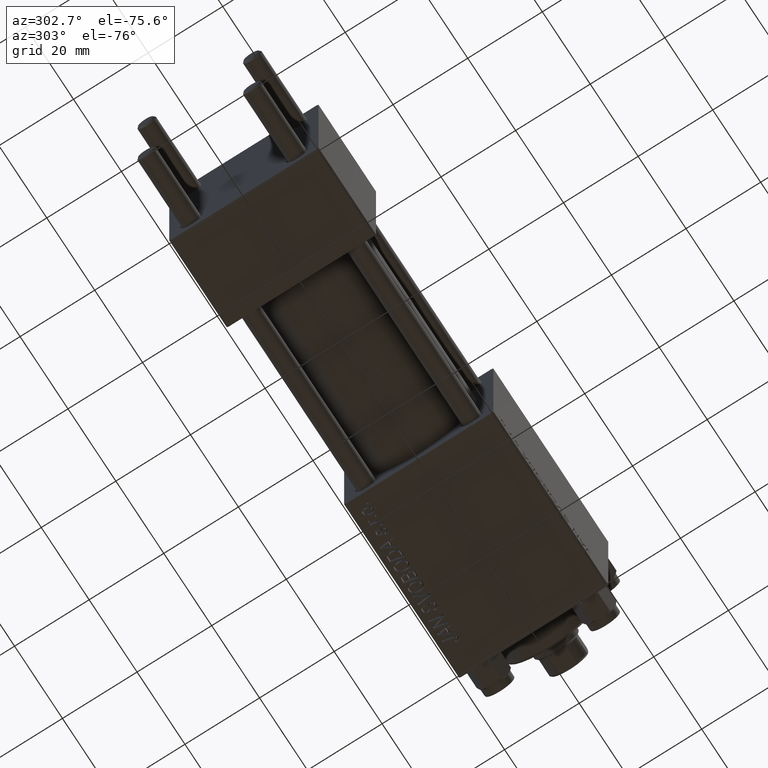
[diagram: clean part render]
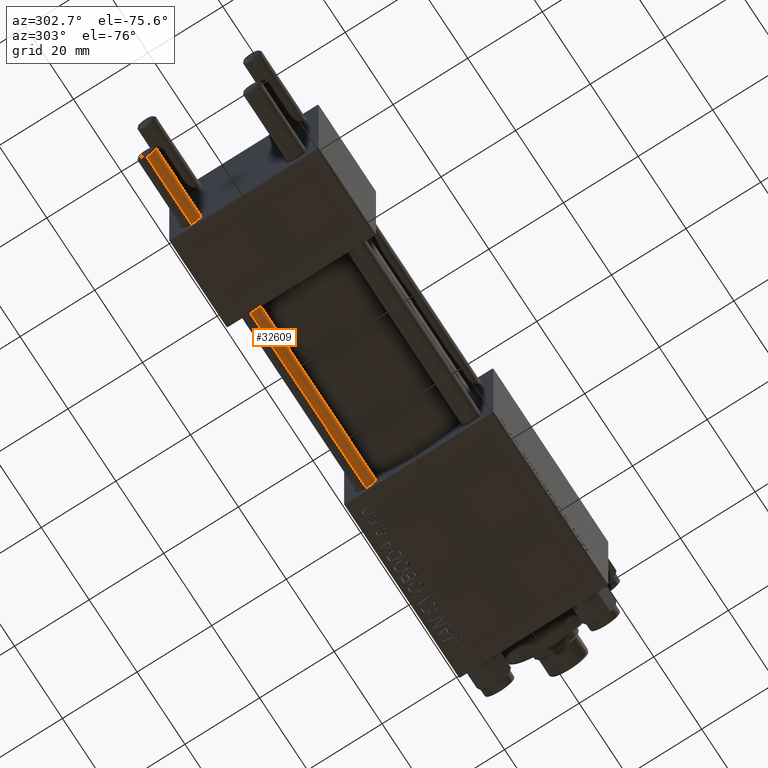
[diagram: same view with one face highlighted and labeled with its STEP entity id]
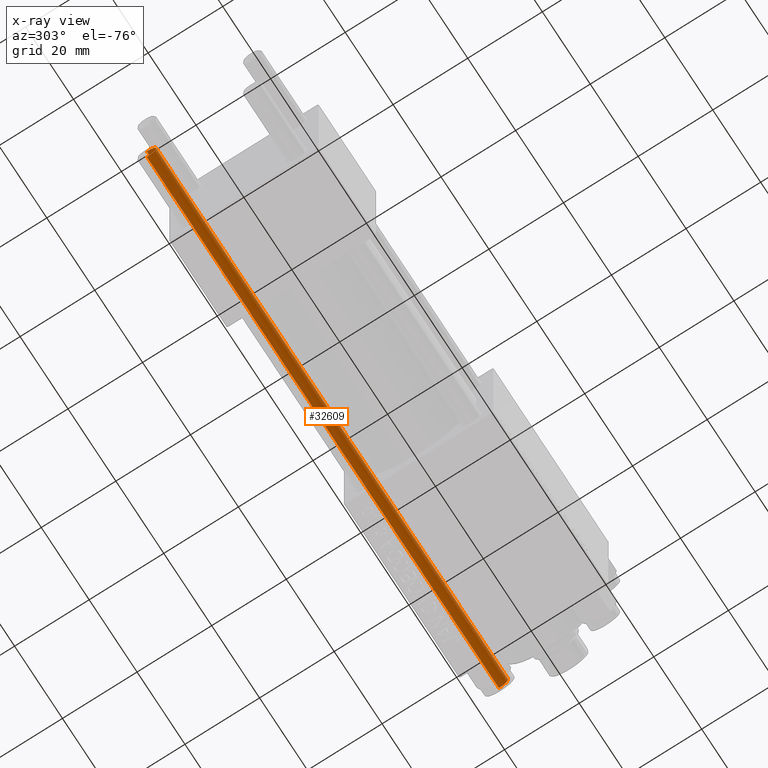
[diagram: x-ray of the same camera — body ghosted, the highlighted face saturated]
A machine part, auxiliary view. The second image highlights one B-rep face of the part: STEP entity #32609.
The next image is the same camera in x-ray: the body ghosted, the highlighted face saturated — about 0% of this face is hidden behind the body in this view.
In plain terms, the highlighted cylindrical surface (edge-blend (fillet) strip) has radius 2.5 mm, axis along (1, 0, -0).
Its self-contained STEP definition (entity closure, byte-faithful):
#1122 = ORIENTED_EDGE ( 'NONE', *, *, #37021, .F. ) ;
#1168 = ORIENTED_EDGE ( 'NONE', *, *, #42324, .T. ) ;
#1254 = EDGE_LOOP ( 'NONE', ( #1122, #13722, #7579, #1168 ) ) ;
#2597 = EDGE_CURVE ( 'NONE', #25005, #3240, #27219, .T. ) ;
#3240 = VERTEX_POINT ( 'NONE', #24052 ) ;
#3876 = CARTESIAN_POINT ( 'NONE',  ( -2.500000000000000000, 0.000000000000000000, 147.5000000000000284 ) ) ;
#4261 = CARTESIAN_POINT ( 'NONE',  ( 2.500000000000000000, 3.061616997868383141E-16, 0.5000000000000004441 ) ) ;
#4546 = CARTESIAN_POINT ( 'NONE',  ( 0.000000000000000000, 0.000000000000000000, 148.0000000000000000 ) ) ;
#5290 = DIRECTION ( 'NONE',  ( -1.000000000000000000, 0.000000000000000000, 0.000000000000000000 ) ) ;
#6192 = VECTOR ( 'NONE', #39978, 1000.000000000000000 ) ;
#6374 = CIRCLE ( 'NONE', #41845, 2.500000000000000000 ) ;
#7579 = ORIENTED_EDGE ( 'NONE', *, *, #2597, .T. ) ;
#7987 = DIRECTION ( 'NONE',  ( 0.000000000000000000, 0.000000000000000000, -1.000000000000000000 ) ) ;
#10083 = VERTEX_POINT ( 'NONE', #46061 ) ;
#10491 = CARTESIAN_POINT ( 'NONE',  ( 0.000000000000000000, 0.000000000000000000, 0.5000000000000004441 ) ) ;
#13722 = ORIENTED_EDGE ( 'NONE', *, *, #20855, .T. ) ;
#14238 = AXIS2_PLACEMENT_3D ( 'NONE', #4546, #31309, #5290 ) ;
#16798 = CARTESIAN_POINT ( 'NONE',  ( 2.500000000000000000, 3.061616997868383141E-16, 148.0000000000000000 ) ) ;
#19076 = VERTEX_POINT ( 'NONE', #4261 ) ;
#20855 = EDGE_CURVE ( 'NONE', #10083, #25005, #23237, .T. ) ;
#23237 = CIRCLE ( 'NONE', #24854, 2.500000000000000000 ) ;
#24052 = CARTESIAN_POINT ( 'NONE',  ( -2.500000000000000000, 0.000000000000000000, 0.5000000000000004441 ) ) ;
#24474 = CYLINDRICAL_SURFACE ( 'NONE', #14238, 2.500000000000000000 ) ;
#24854 = AXIS2_PLACEMENT_3D ( 'NONE', #27425, #7987, #30975 ) ;
#25005 = VERTEX_POINT ( 'NONE', #3876 ) ;
#27219 = LINE ( 'NONE', #31263, #32445 ) ;
#27425 = CARTESIAN_POINT ( 'NONE',  ( 0.000000000000000000, 0.000000000000000000, 147.5000000000000284 ) ) ;
#28132 = LINE ( 'NONE', #16798, #6192 ) ;
#30975 = DIRECTION ( 'NONE',  ( 1.000000000000000000, 0.000000000000000000, 0.000000000000000000 ) ) ;
#31263 = CARTESIAN_POINT ( 'NONE',  ( -2.500000000000000000, 0.000000000000000000, 148.0000000000000000 ) ) ;
#31309 = DIRECTION ( 'NONE',  ( -0.000000000000000000, -0.000000000000000000, -1.000000000000000000 ) ) ;
#32445 = VECTOR ( 'NONE', #39571, 1000.000000000000000 ) ;
#32609 = ADVANCED_FACE ( 'NONE', ( #39860 ), #24474, .T. ) ;
#37007 = DIRECTION ( 'NONE',  ( -0.000000000000000000, -0.000000000000000000, 1.000000000000000000 ) ) ;
#37021 = EDGE_CURVE ( 'NONE', #10083, #19076, #28132, .T. ) ;
#39571 = DIRECTION ( 'NONE',  ( -0.000000000000000000, -0.000000000000000000, -1.000000000000000000 ) ) ;
#39860 = FACE_OUTER_BOUND ( 'NONE', #1254, .T. ) ;
#39978 = DIRECTION ( 'NONE',  ( -0.000000000000000000, -0.000000000000000000, -1.000000000000000000 ) ) ;
#41845 = AXIS2_PLACEMENT_3D ( 'NONE', #10491, #37007, #45080 ) ;
#42324 = EDGE_CURVE ( 'NONE', #3240, #19076, #6374, .T. ) ;
#45080 = DIRECTION ( 'NONE',  ( 1.000000000000000000, 0.000000000000000000, 0.000000000000000000 ) ) ;
#46061 = CARTESIAN_POINT ( 'NONE',  ( 2.500000000000000000, 3.061616997868383141E-16, 147.5000000000000284 ) ) ;